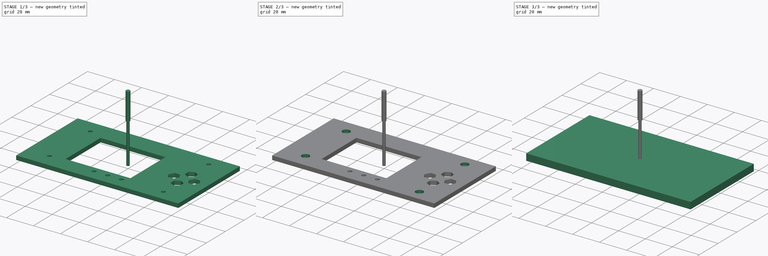
[diagram: build sequence overview — one tinted view per stage of 3, left to right]
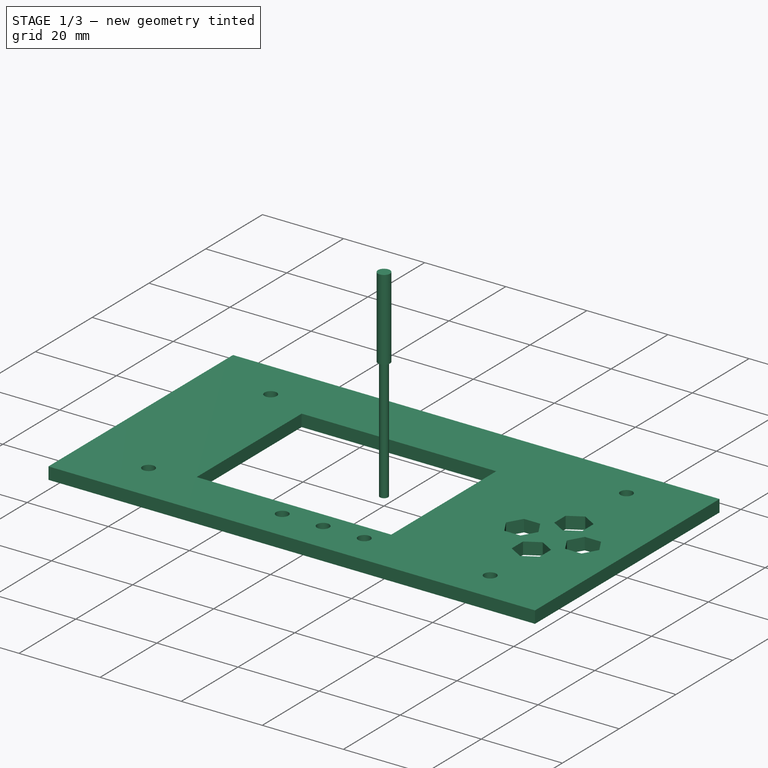
[diagram: stage 1 of 3 — iso view after this stage's code; geometry added in this stage tinted green]
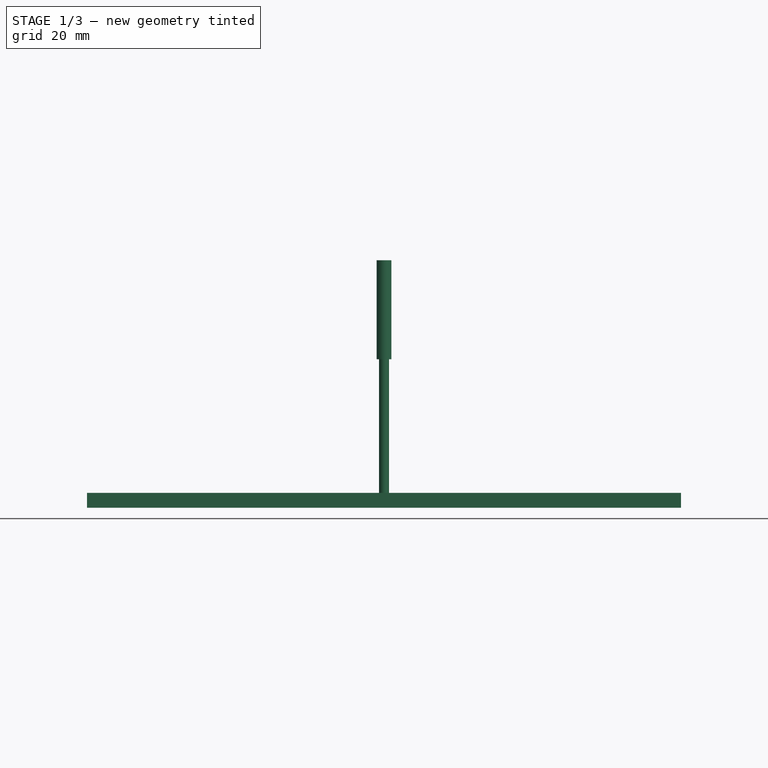
[diagram: stage 1 of 3 — front view after this stage's code; geometry added in this stage tinted green]
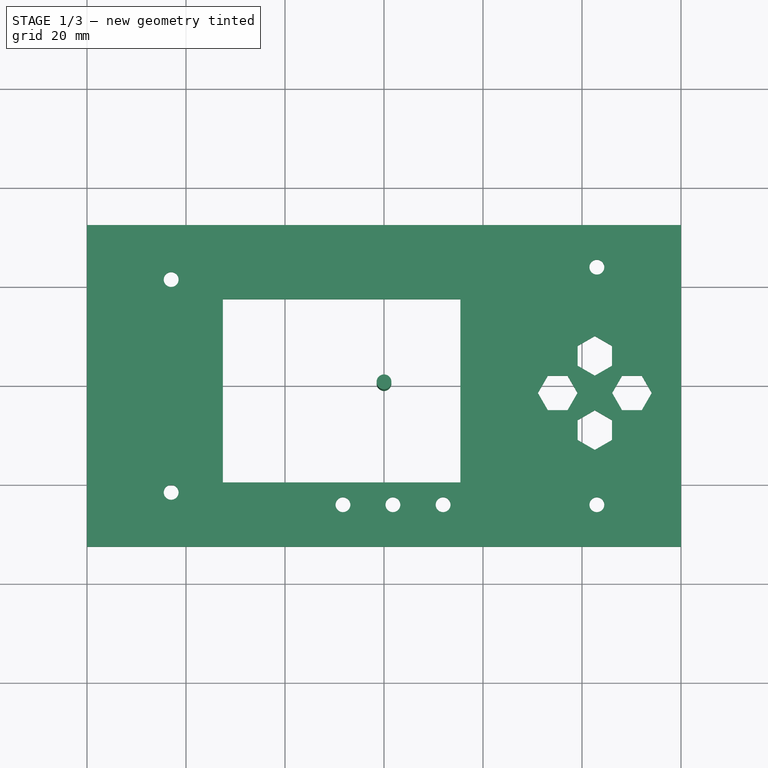
[diagram: stage 1 of 3 — top view after this stage's code; geometry added in this stage tinted green]
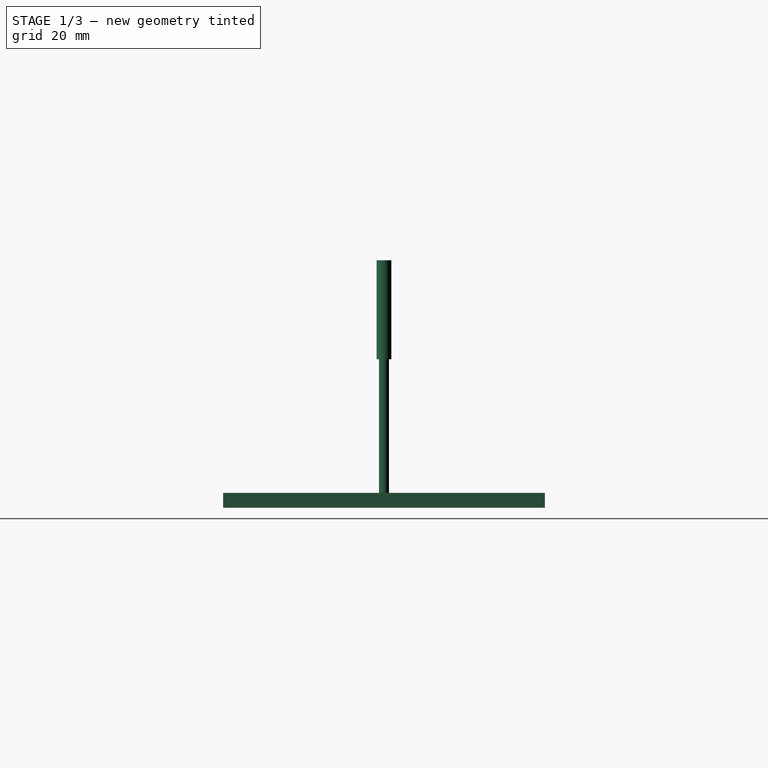
[diagram: stage 1 of 3 — right view after this stage's code; geometry added in this stage tinted green]
FCSTD DOCUMENT  (FreeCAD 0.21R33694 (Git))
Label: drilling-fc21-3
License: CreativeCommons Attribution-NonCommercial-ShareAlike
LicenseURL: http://creativecommons.org/licenses/by-nc-sa/4.0/
objects: Path::FeaturePython×4, Part::FeaturePython×3, App::DocumentObjectGroup×3, Sketcher::SketchObject×2, TechDraw::DrawViewDimension×2, PartDesign::Pad×1, TechDraw::DrawSVGTemplate×1, PartDesign::Plane×1, PartDesign::Pocket×1, PartDesign::Body×1, App::FeaturePython×1, TechDraw::DrawViewPart×1, TechDraw::DrawPage×1
note: 15 computed .brp shape members not serialized (recipe doc carries the construction recipe); baked Part::Feature solids carry a one-line shape summary decoded from their .brp

FEATURE [Sketcher::SketchObject] Sketch
  FullyConstrained = true
  MapMode = 5
  Support = -> [XY_Plane]
  sketch-geometry (50):
    g0: LineSegment StartX=-60 StartY=32.5 StartZ=0 EndX=60 EndY=32.5 EndZ=0
    g1: LineSegment StartX=60 StartY=32.5 StartZ=0 EndX=60 EndY=-32.5 EndZ=0
    g2: LineSegment StartX=60 StartY=-32.5 StartZ=0 EndX=-60 EndY=-32.5 EndZ=0
    g3: LineSegment StartX=-60 StartY=-32.5 StartZ=0 EndX=-60 EndY=32.5 EndZ=0
    g4: LineSegment StartX=-32.56 StartY=17.5 StartZ=0 EndX=15.44 EndY=17.5 EndZ=0
    g5: LineSegment StartX=15.44 StartY=17.5 StartZ=0 EndX=15.44 EndY=-19.5 EndZ=0
    g6: LineSegment StartX=15.44 StartY=-19.5 StartZ=0 EndX=-32.56 EndY=-19.5 EndZ=0
    g7: LineSegment StartX=-32.56 StartY=-19.5 StartZ=0 EndX=-32.56 EndY=17.5 EndZ=0
    g8: Circle CenterX=-8.29 CenterY=-24 CenterZ=0 NormalX=0 NormalY=0 NormalZ=1 AngleXU=0 Radius=1.5
    g9: Circle CenterX=1.8 CenterY=-24 CenterZ=0 NormalX=0 NormalY=0 NormalZ=1 AngleXU=0 Radius=1.5
    g10: Circle CenterX=11.94 CenterY=-24 CenterZ=0 NormalX=0 NormalY=0 NormalZ=1 AngleXU=0 Radius=1.5
    g11: Circle CenterX=43 CenterY=24 CenterZ=0 NormalX=0 NormalY=0 NormalZ=1 AngleXU=0 Radius=1.5
    g12: Circle CenterX=43 CenterY=-24 CenterZ=0 NormalX=0 NormalY=0 NormalZ=1 AngleXU=0 Radius=1.5
    g13: Circle CenterX=-43 CenterY=-21.5 CenterZ=0 NormalX=0 NormalY=0 NormalZ=1 AngleXU=0 Radius=1.5
    g14: LineSegment StartX=43 StartY=24 StartZ=0 EndX=43 EndY=-24 EndZ=0
    g15: LineSegment StartX=46.0541 StartY=4.08 StartZ=0 EndX=46.0541 EndY=8.08 EndZ=0
    g16: LineSegment StartX=46.0541 StartY=8.08 StartZ=0 EndX=42.59 EndY=10.08 EndZ=0
    g17: LineSegment StartX=42.59 StartY=10.08 StartZ=0 EndX=39.1259 EndY=8.08 EndZ=0
    g18: LineSegment StartX=39.1259 StartY=8.08 StartZ=0 EndX=39.1259 EndY=4.08 EndZ=0
    g19: LineSegment StartX=39.1259 StartY=4.08 StartZ=0 EndX=42.59 EndY=2.08 EndZ=0
    g20: LineSegment StartX=42.59 StartY=2.08 StartZ=0 EndX=46.0541 EndY=4.08 EndZ=0
    g21: Circle CenterX=42.59 CenterY=6.08 CenterZ=0 NormalX=0 NormalY=0 NormalZ=1 AngleXU=0 Radius=4
    g22: LineSegment StartX=52.09 StartY=2.0441 StartZ=0 EndX=48.09 EndY=2.0441 EndZ=0
    g23: LineSegment StartX=48.09 StartY=2.0441 StartZ=0 EndX=46.09 EndY=-1.42 EndZ=0
    g24: LineSegment StartX=46.09 StartY=-1.42 StartZ=0 EndX=48.09 EndY=-4.8841 EndZ=0
    g25: LineSegment StartX=48.09 StartY=-4.8841 StartZ=0 EndX=52.09 EndY=-4.8841 EndZ=0
    g26: LineSegment StartX=52.09 StartY=-4.8841 StartZ=0 EndX=54.09 EndY=-1.42 EndZ=0
    g27: LineSegment StartX=54.09 StartY=-1.42 StartZ=0 EndX=52.09 EndY=2.0441 EndZ=0
    g28: Circle CenterX=50.09 CenterY=-1.42 CenterZ=0 NormalX=0 NormalY=0 NormalZ=1 AngleXU=0 Radius=4
    g29: LineSegment StartX=37.09 StartY=2.0441 StartZ=0 EndX=33.09 EndY=2.0441 EndZ=0
    g30: LineSegment StartX=33.09 StartY=2.0441 StartZ=0 EndX=31.09 EndY=-1.42 EndZ=0
    g31: LineSegment StartX=31.09 StartY=-1.42 StartZ=0 EndX=33.09 EndY=-4.8841 EndZ=0
    g32: LineSegment StartX=33.09 StartY=-4.8841 StartZ=0 EndX=37.09 EndY=-4.8841 EndZ=0
    g33: LineSegment StartX=37.09 StartY=-4.8841 StartZ=0 EndX=39.09 EndY=-1.42 EndZ=0
    g34: LineSegment StartX=39.09 StartY=-1.42 StartZ=0 EndX=37.09 EndY=2.0441 EndZ=0
    g35: Circle CenterX=35.09 CenterY=-1.42 CenterZ=0 NormalX=0 NormalY=0 NormalZ=1 AngleXU=0 Radius=4
    g36: LineSegment StartX=39.1259 StartY=-6.92 StartZ=0 EndX=39.1259 EndY=-10.92 EndZ=0
    g37: LineSegment StartX=39.1259 StartY=-10.92 StartZ=0 EndX=42.59 EndY=-12.92 EndZ=0
    g38: LineSegment StartX=42.59 StartY=-12.92 StartZ=0 EndX=46.0541 EndY=-10.92 EndZ=0
    g39: LineSegment StartX=46.0541 StartY=-10.92 StartZ=0 EndX=46.0541 EndY=-6.92 EndZ=0
    g40: LineSegment StartX=46.0541 StartY=-6.92 StartZ=0 EndX=42.59 EndY=-4.92 EndZ=0
    g41: LineSegment StartX=42.59 StartY=-4.92 StartZ=0 EndX=39.1259 EndY=-6.92 EndZ=0
    g42: Circle CenterX=42.59 CenterY=-8.92 CenterZ=0 NormalX=0 NormalY=0 NormalZ=1 AngleXU=0 Radius=4
    g43: LineSegment StartX=35.09 StartY=-1.42 StartZ=0 EndX=42.59 EndY=-8.92 EndZ=0
    g44: LineSegment StartX=35.09 StartY=-1.42 StartZ=0 EndX=42.59 EndY=6.08 EndZ=0
    g45: LineSegment StartX=42.59 StartY=-8.92 StartZ=0 EndX=50.09 EndY=-1.42 EndZ=0
    g46: LineSegment StartX=42.59 StartY=6.08 StartZ=0 EndX=50.09 EndY=-1.42 EndZ=0
    g47: Circle CenterX=-43 CenterY=21.5 CenterZ=0 NormalX=0 NormalY=0 NormalZ=1 AngleXU=0 Radius=1.5
    g48: LineSegment StartX=43 StartY=24 StartZ=0 EndX=-43 EndY=24 EndZ=0
    g49: Circle CenterX=0 CenterY=0 CenterZ=0 NormalX=0 NormalY=0 NormalZ=1 AngleXU=0 Radius=1
  constraints (124):
    c: Coincident(g0,g1)
    c: Coincident(g1,g2)
    c: Coincident(g2,g3)
    c: Coincident(g3,g0)
    c: Horizontal(g2)
    c: Vertical(g1)
    c: Symmetric(g2,g0,g-1)
    c: Symmetric(g0,g0,g-2)
    c: Coincident(g4,g5)
    c: Coincident(g5,g6)
    c: Coincident(g6,g7)
    c: Coincident(g7,g4)
    c: Horizontal(g4)
    c: Horizontal(g6)
    c: Vertical(g5)
    c: Vertical(g7)
    c: Radius(g8) = 1.5
    c: Equal(g9,g8)
    c: Equal(g8,g10)
    c: Equal(g11,g12)
    c: Coincident(g14,g11)
    c: Coincident(g14,g12)
    c: Vertical(g14)
    c: DistanceX(g0,g0) = 120
    c: DistanceY(g1,g1) = 65
    c: DistanceX(g8,g9) = 10.09
    c: DistanceX(g9,g10) = 10.14
    c: DistanceX(g10,g12) = 31.06
    c: Horizontal(g10,g12)
    c: DistanceX(g4,g4) = 48
    c: DistanceY(g7,g7) = 37
    c: DistanceY(g10,g5) = 4.5
    c: DistanceX(g10,g5) = 3.5
    c: Horizontal(g9,g8)
    c: Horizontal(g10,g9)
    c: Coincident(g15,g16)
    c: Coincident(g16,g17)
    c: Coincident(g17,g18)
    c: Coincident(g18,g19)
    c: Coincident(g19,g20)
    c: Coincident(g20,g15)
    c: Equal(g15, g16-g20) x5
    c: PointOnObject(g15,g21)
    c: PointOnObject(g16,g21)
    c: PointOnObject(g17,g21)
    c: PointOnObject(g18,g21)
    c: PointOnObject(g19,g21)
    c: PointOnObject(g20,g21)
    c: Coincident(g22,g23)
    c: Coincident(g23,g24)
    c: Coincident(g24,g25)
    c: Coincident(g25,g26)
    c: Coincident(g26,g27)
    c: Coincident(g27,g22)
    c: Equal(g22, g23-g27) x5
    c: PointOnObject(g22,g28)
    c: PointOnObject(g23,g28)
    c: PointOnObject(g24,g28)
    c: PointOnObject(g25,g28)
    c: PointOnObject(g26,g28)
    c: PointOnObject(g27,g28)
    c: Coincident(g29,g30)
    c: Coincident(g30,g31)
    c: Coincident(g31,g32)
    c: Coincident(g32,g33)
    c: Coincident(g33,g34)
    c: Coincident(g34,g29)
    c: Equal(g29, g30-g34) x5
    c: PointOnObject(g29,g35)
    c: PointOnObject(g30,g35)
    c: PointOnObject(g31,g35)
    c: PointOnObject(g32,g35)
    c: PointOnObject(g33,g35)
    c: PointOnObject(g34,g35)
    c: Coincident(g36,g37)
    c: Coincident(g37,g38)
    c: Coincident(g38,g39)
    c: Coincident(g39,g40)
    c: Coincident(g40,g41)
    c: Coincident(g41,g36)
    c: Equal(g36, g37-g41) x5
    c: PointOnObject(g36,g42)
    c: PointOnObject(g37,g42)
    c: PointOnObject(g38,g42)
    c: PointOnObject(g39,g42)
    c: PointOnObject(g40,g42)
    c: PointOnObject(g41,g42)
    c: Equal(g21,g35)
    c: Equal(g35,g28)
    c: Equal(g28,g42)
    c: Vertical(g18)
    c: Horizontal(g29)
    c: Horizontal(g22)
    c: Vertical(g36)
    c: DistanceX(g35,g28) = 15
    c: DistanceY(g42,g21) = 15
    c: DistanceY(g19,g16) = 8
    c: Horizontal(g29,g22)
    c: Vertical(g15,g39)
    c: Coincident(g43,g35)
    c: Coincident(g43,g42)
    c: Coincident(g44,g35)
    c: Coincident(g44,g21)
    c: Coincident(g45,g42)
    c: Coincident(g45,g28)
    c: Coincident(g46,g21)
    c: Coincident(g46,g28)
    c: Equal(g43,g44)
    c: Equal(g44,g45)
    c: DistanceY(g21,g11) = 17.92
    c: DistanceX(g21,g11) = 0.41
    c: DistanceY(g12,g11) = 48
    c: DistanceX(g47,g11) = 86
    c: DistanceY(g13,g47) = 43
    c: Equal(g13,g47)
    c: Equal(g47,g11)
    c: Radius(g13) = 1.5
    c: DistanceY(g47,g11) = 2.5
    c: Symmetric(g13,g47,g-1)
    c: Coincident(g48,g11)
    c: Vertical(g48,g47)
    c: Symmetric(g48,g11,g-2)
    c: Coincident(g-1,g49)
    c: Radius(g49) = 1
FEATURE [PartDesign::Pad] Pad
  AllowMultiFace = false
  Direction = (0,0,1)
  Length = 3
  Length2 = 100
  Profile = -> Sketch
  Type = 0
FEATURE [App::DocumentObjectGroup] Model
  Group = -> [Clone]
FEATURE [Part::FeaturePython] ToolBit  label="Endmill"  # Path/CAM toolbit (typed FeaturePython)
  BitPropertyNames = Chipload | CuttingEdgeHeight | Diameter | Flutes | Length | Material | ShankDiameter | SpindleDirection
  BitShape = <path>
  Chipload = 0
  CuttingEdgeHeight = 30
  Diameter = 2
  Flutes = 0
  Length = 50
  Material = 0
  ShankDiameter = 3
  ShapeName = endmill
  SpindleDirection = 0
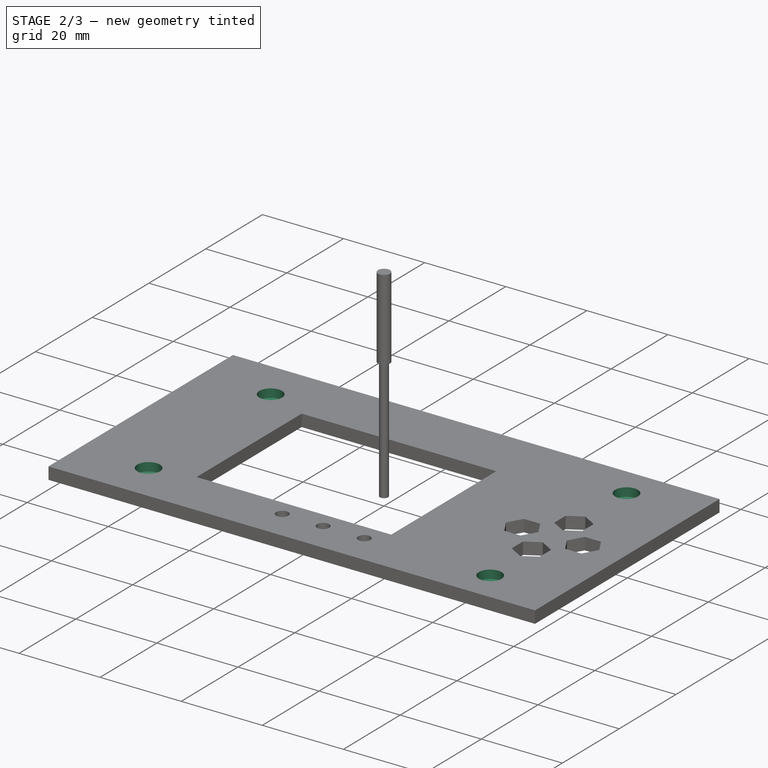
[diagram: stage 2 of 3 — iso view after this stage's code; geometry added in this stage tinted green]
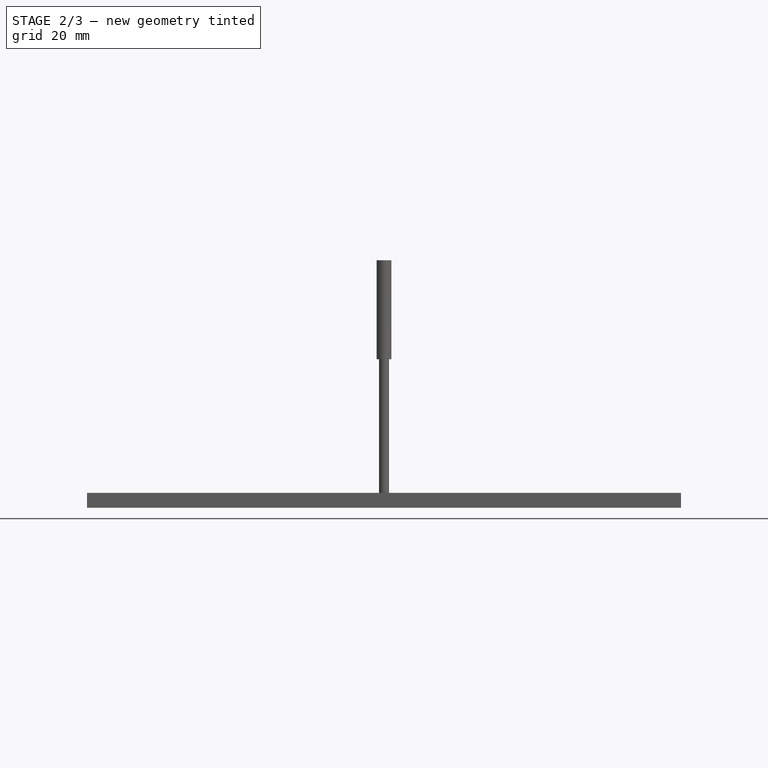
[diagram: stage 2 of 3 — front view after this stage's code; geometry added in this stage tinted green]
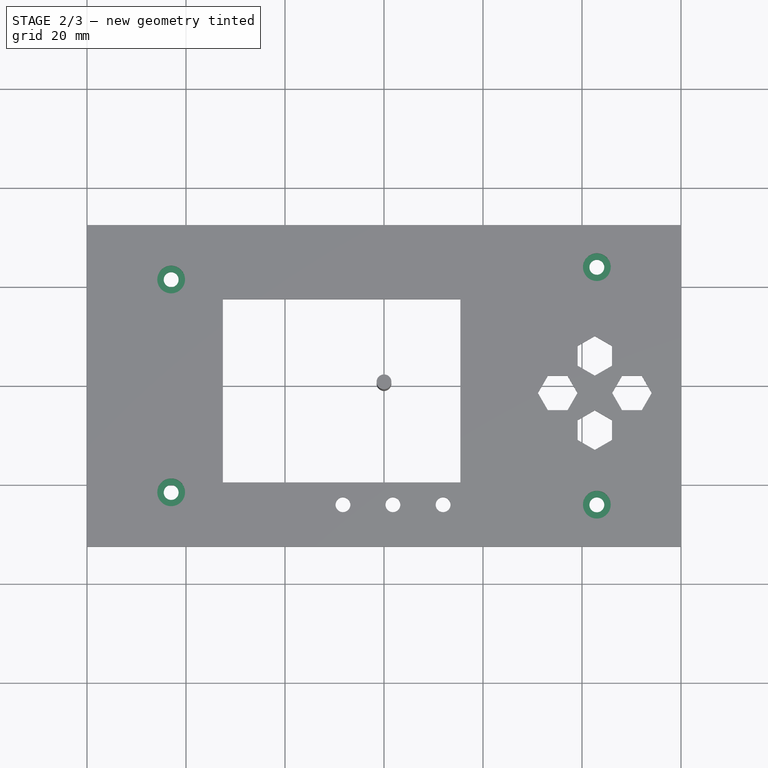
[diagram: stage 2 of 3 — top view after this stage's code; geometry added in this stage tinted green]
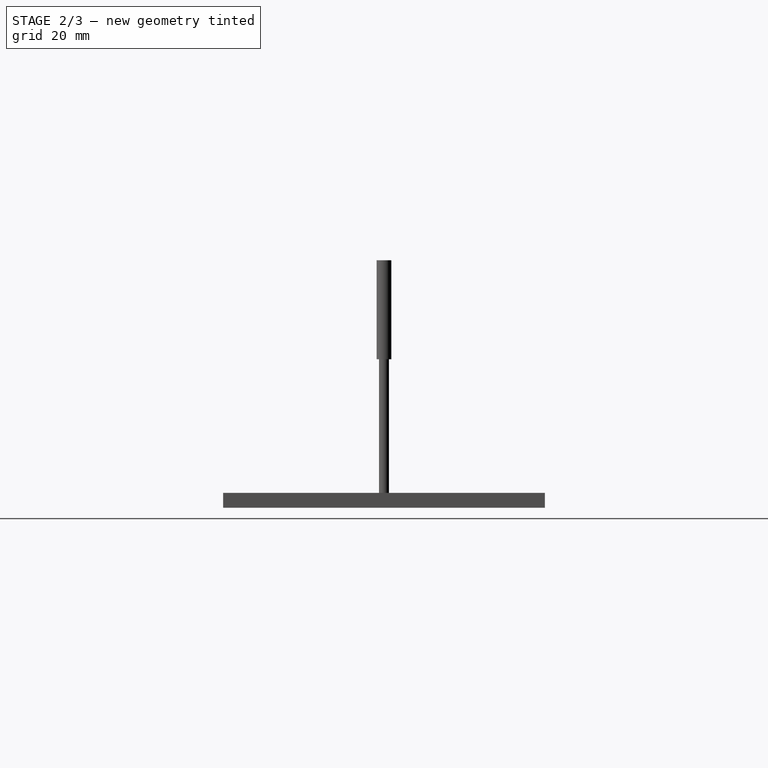
[diagram: stage 2 of 3 — right view after this stage's code; geometry added in this stage tinted green]
FEATURE [TechDraw::DrawSVGTemplate] Template
  EditableTexts = Designed_by_Name=Designed by Name; Drawing_number=Drawing number; FC-Date=Date; FC-SC=Scale; FC-SH=Sheet; FC-Title=Title; Subtitle=Subtitle; Weight=Weight
  Height = 210
  Orientation = 1
  Width = 297
FEATURE [PartDesign::Plane] DatumPlane
  Length = 137.664
  MapMode = 5
  Placement = pos=(0,0,3) rot=(0,0,1;0rad)
  ResizeMode = 0
  Support = -> [Pad]
  Width = 82.6635
FEATURE [Sketcher::SketchObject] Sketch001
  FullyConstrained = true
  MapMode = 5
  Placement = pos=(0,0,3) rot=(0,0,1;0rad)
  Support = -> [DatumPlane]
  sketch-geometry (4):
    g0: Circle CenterX=-43 CenterY=21.5 CenterZ=0 NormalX=0 NormalY=0 NormalZ=1 AngleXU=0 Radius=2.8
    g1: Circle CenterX=43 CenterY=24 CenterZ=0 NormalX=0 NormalY=0 NormalZ=1 AngleXU=0 Radius=2.8
    g2: Circle CenterX=43 CenterY=-24 CenterZ=0 NormalX=0 NormalY=0 NormalZ=1 AngleXU=0 Radius=2.8
    g3: Circle CenterX=-43 CenterY=-21.5 CenterZ=0 NormalX=0 NormalY=0 NormalZ=1 AngleXU=0 Radius=2.8
  constraints (10):
    c: Equal(g0,g3)
    c: Equal(g3,g2)
    c: Equal(g2,g1)
    c: Radius(g1) = 2.8
    c: DistanceX(g0,g1) = 86
    c: Symmetric(g3,g0,g-1)
    c: Symmetric(g1,g2,g-1)
    c: DistanceY(g3,g0) = 43
    c: DistanceY(g2,g1) = 48
    c: DistanceX(g0,g-1) = 43
FEATURE [PartDesign::Pocket] Pocket
  BaseFeature = -> Pad
  Direction = (0,0,-1)
  Length = 2.1
  Length2 = 5
  Profile = -> Sketch001
  ReferenceAxis = -> Sketch001 [N_Axis]
  Type = 0
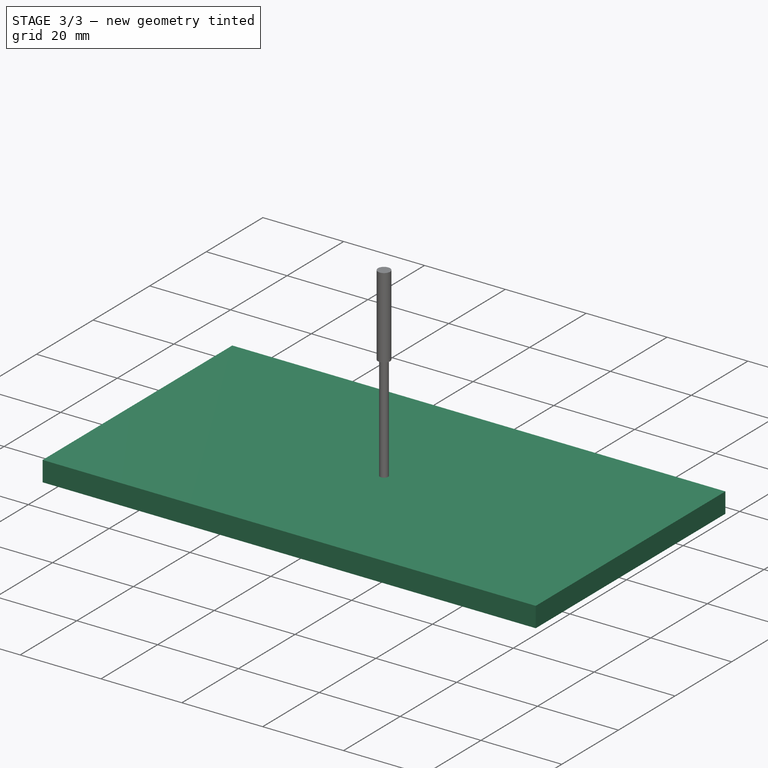
[diagram: stage 3 of 3 — iso view after this stage's code; geometry added in this stage tinted green]
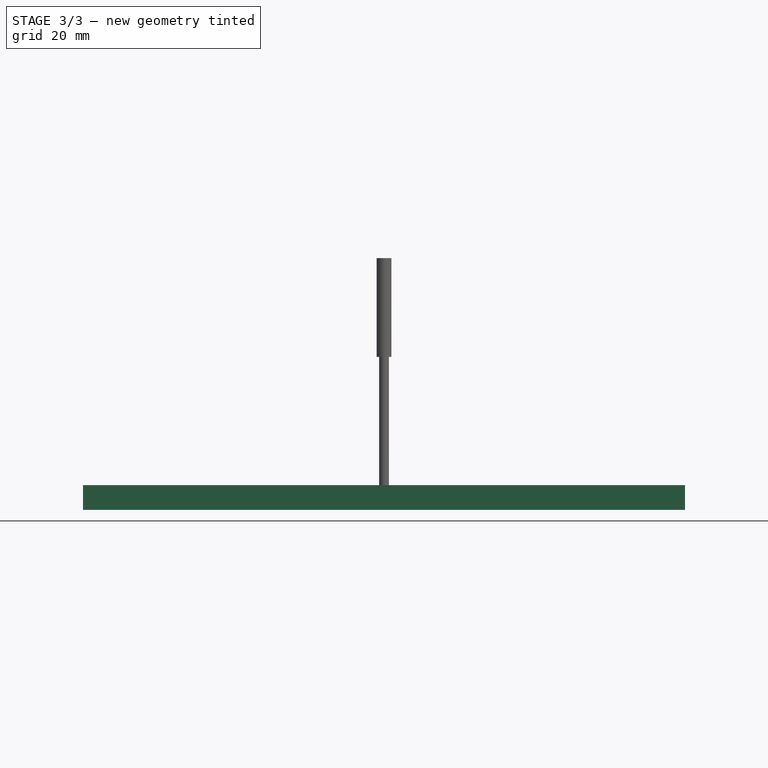
[diagram: stage 3 of 3 — front view after this stage's code; geometry added in this stage tinted green]
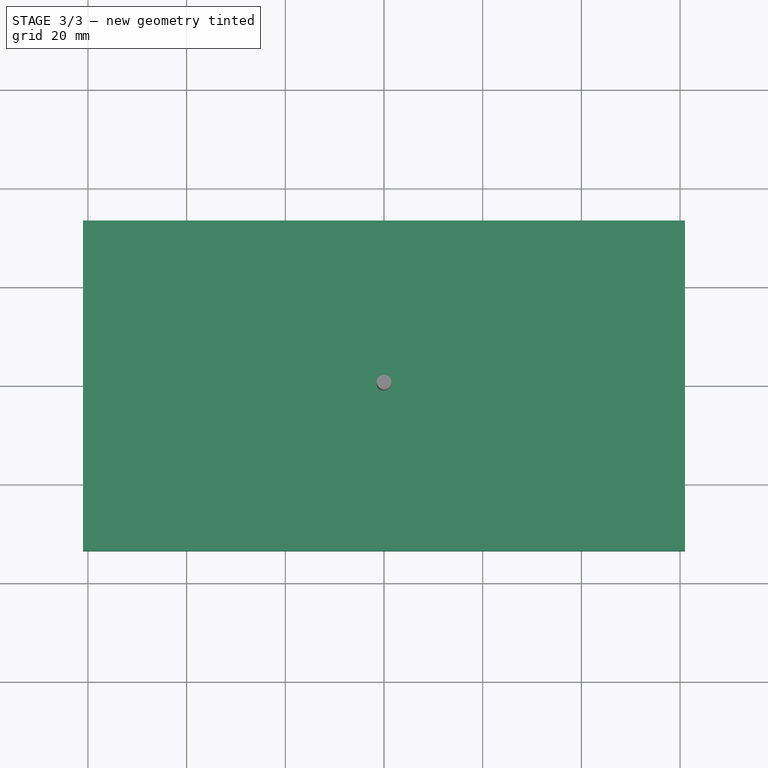
[diagram: stage 3 of 3 — top view after this stage's code; geometry added in this stage tinted green]
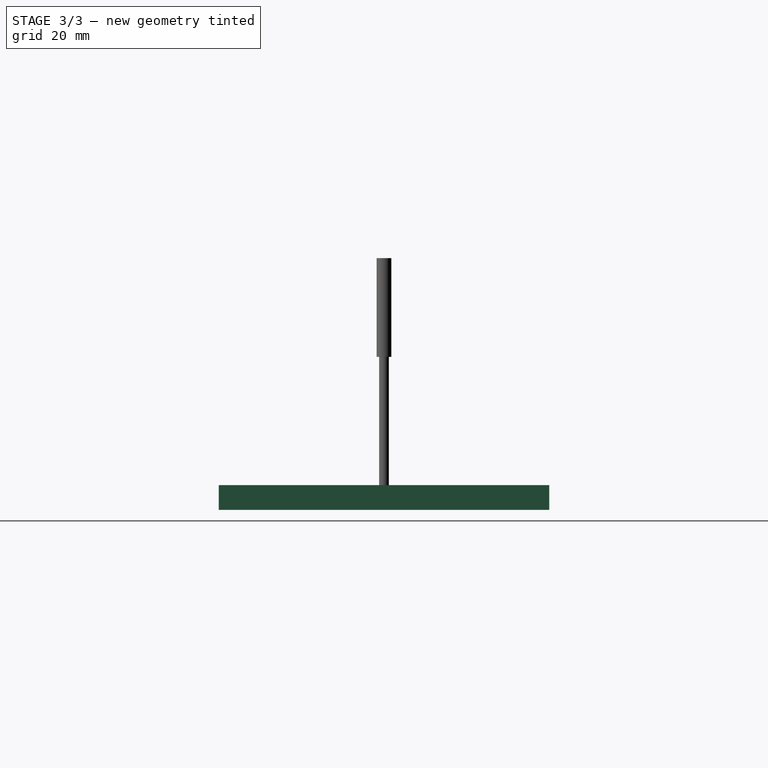
[diagram: stage 3 of 3 — right view after this stage's code; geometry added in this stage tinted green]
FEATURE [PartDesign::Body] Body
  Group = -> [Sketch,Pad,DatumPlane,Sketch001,Pocket]
  Origin = -> Origin
  Placement = pos=(0,0,-3) rot=(0,0,1;0rad)
  Tip = -> Pocket
FEATURE [App::FeaturePython] SetupSheet  # Path/CAM operation (typed FeaturePython)
  ClearanceHeightExpression = OpStockZMax+SetupSheet.ClearanceHeightOffset
  ClearanceHeightOffset = 5
  CoolantMode = 0
  CoolantModes = None | Flood | Mist
  FinalDepthExpression = OpFinalDepth
  HorizRapid = 0
  SafeHeightExpression = OpStockZMax+SetupSheet.SafeHeightOffset
  SafeHeightOffset = 3
  StartDepthExpression = OpStartDepth
  StepDownExpression = OpToolDiameter
  VertRapid = 0
FEATURE [Part::FeaturePython] Clone  label="Model-Body"  # Draft clone (typed FeaturePython)
  AttacherType = Attacher::AttachEngine3D
  Fuse = false
  Objects = -> [Body]
  PathResource = Model
  Scale = (1,1,1)
FEATURE [Path::FeaturePython] TC__Default_Tool  label="TC: Default Tool"  # Path/CAM operation (typed FeaturePython)
  HorizFeed = 1
  HorizRapid = 0
  SpindleDir = 0
  SpindleSpeed = 0
  Tool = -> ToolBit
  ToolNumber = 1
  VertFeed = 1
  VertRapid = 0
  expr: HorizRapid = SetupSheet.HorizRapid
  expr: VertRapid = SetupSheet.VertRapid
FEATURE [App::DocumentObjectGroup] Tools
  Group = -> [TC__Default_Tool]
FEATURE [Part::FeaturePython] Stock  # WARN: FeaturePython — macro-defined, semantics opaque (R4)
  Base = -> Model
  ExtXneg = 1
  ExtXpos = 1
  ExtYneg = 1
  ExtYpos = 1
  ExtZneg = 1
  ExtZpos = 1
  Placement = pos=(-60,-32.5,0) rot=(0,0,1;0rad)
  StockType = FromBase
FEATURE [Path::FeaturePython] Profile  # Path/CAM operation (typed FeaturePython)
  Active = true
  AreaParams:
    Tolerance = 1e-07
    FitArcs = True
    Simplify = False
    CleanDistance = 0.0
    Accuracy = 0.01
    Unit = 1.0
    MinArcPoints = 4
    MaxArcPoints = 100
    ClipperScale = 10000000.0
    Fill = 0
    Coplanar = 0
    Reorient = True
    Outline = False
    Explode = False
    OpenMode = 0
    Deflection = 0.01
    SubjectFill = 0
    ClipFill = 0
    Offset = -1.0
    ExtraPass = 0
    Stepover = 0.0
    LastStepover = 0.0
    JoinType = 0
    EndType = 0
    MiterLimit = 2.0
    RoundPrecision = 0.0
    PocketMode = 0
    ToolRadius = 1.0
    PocketExtraOffset = 0.0
    PocketStepover = 0.0
    PocketLastStepover = 0.0
    FromCenter = False
    Angle = 45.0
    AngleShift = 0.0
    Shift = 0.0
    Thicken = False
    SectionCount = -1
    Stepdown = 1.0
    SectionOffset = 0.0
    SectionTolerance = 1e-07
    SectionMode = 2
    Project = False
  Base = -> [Clone]
  ClearanceHeight = 9
  CoolantMode = 0
  CycleTime = 00:18:00
  Direction = 0
  FinalDepth = -4
  HandleMultipleFeatures = 0
  JoinType = 0
  MiterLimit = 0.1
  OffsetExtra = 0
  OpFinalDepth = 3
  OpStartDepth = 4
  OpStockZMax = 4
  OpStockZMin = -1
  OpToolDiameter = 2
  PathParams = {'orientation': 1, 'feedrate': 1.0, 'feedrate_v': 1.0, 'verbose': True, 'resume_height': 7.0, 'retraction': 9.0, 'return_end': True, 'preamble': False, 'start': Vector (-42.5081875566069, 21.457189013765262, 9.0)}
  SafeHeight = 7
  Side = 1
  SplitArcs = false
  StartDepth = 0
  StartPoint = (0,0,0)
  StepDown = 2
  ToolController = -> TC__Default_Tool
  UseComp = true
  UseStartPoint = false
  processCircles = false
  processHoles = false
  processPerimeter = true
  expr: ClearanceHeight = OpStockZMax + SetupSheet.ClearanceHeightOffset
  expr: FinalDepth = -4
  expr: SafeHeight = OpStockZMax + SetupSheet.SafeHeightOffset
  expr: StartDepth = 0
  expr: StepDown = OpToolDiameter
FEATURE [Path::FeaturePython] Profile001  # Path/CAM operation (typed FeaturePython)
  Active = true
  AreaParams:
    Tolerance = 1e-07
    FitArcs = True
    Simplify = False
    CleanDistance = 0.0
    Accuracy = 0.01
    Unit = 1.0
    MinArcPoints = 4
    MaxArcPoints = 100
    ClipperScale = 10000000.0
    Fill = 0
    Coplanar = 0
    Reorient = True
    Outline = False
    Explode = False
    OpenMode = 0
    Deflection = 0.01
    SubjectFill = 0
    ClipFill = 0
    Offset = -1.0
    ExtraPass = 0
    Stepover = 0.0
    LastStepover = 0.0
    JoinType = 0
    EndType = 0
    MiterLimit = 2.0
    RoundPrecision = 0.0
    PocketMode = 0
    ToolRadius = 1.0
    PocketExtraOffset = 0.0
    PocketStepover = 0.0
    PocketLastStepover = 0.0
    FromCenter = False
    Angle = 45.0
    AngleShift = 0.0
    Shift = 0.0
    Thicken = False
    SectionCount = -1
    Stepdown = 1.0
    SectionOffset = 0.0
    SectionTolerance = 1e-07
    SectionMode = 2
    Project = False
  Base = -> [Clone]
  ClearanceHeight = 9
  CoolantMode = 0
  CycleTime = 00:05:06
  Direction = 0
  FinalDepth = 2.1
  HandleMultipleFeatures = 0
  JoinType = 0
  MiterLimit = 0.1
  OffsetExtra = 0
  OpFinalDepth = 3
  OpStartDepth = 4
  OpStockZMax = 4
  OpStockZMin = -1
  OpToolDiameter = 2
  PathParams = {'orientation': 1, 'feedrate': 1.0, 'feedrate_v': 1.0, 'verbose': True, 'resume_height': 7.0, 'retraction': 9.0, 'return_end': True, 'preamble': False, 'start': Vector (41.20566773734514, 23.910317067630846, 9.0)}
  SafeHeight = 7
  Side = 1
  SplitArcs = false
  StartDepth = 0
  StartPoint = (0,0,0)
  StepDown = 2.1
  ToolController = -> TC__Default_Tool
  UseComp = true
  UseStartPoint = false
  processCircles = false
  processHoles = false
  processPerimeter = true
  expr: ClearanceHeight = OpStockZMax + SetupSheet.ClearanceHeightOffset
  expr: FinalDepth = 2.1
  expr: SafeHeight = OpStockZMax + SetupSheet.SafeHeightOffset
  expr: StartDepth = 0
  expr: StepDown = 2.1
FEATURE [App::DocumentObjectGroup] Operations
  Group = -> [Profile,Profile001]
FEATURE [Path::FeaturePython] Job  # Path/CAM operation (typed FeaturePython)
  CycleTime = 00:23:06
  Fixtures = G54
  GeometryTolerance = 0.01
  JobType = 0
  Model = -> Model
  Operations = -> Operations
  OrderOutputBy = 0
  PostProcessor = 10
  SetupSheet = -> SetupSheet
  SplitOutput = false
  Stock = -> Stock
  Tools = -> Tools
FEATURE [TechDraw::DrawViewPart] View
  CoarseView = false
  Direction = (0,0,1)
  Focus = 100
  HardHidden = false
  IsoCount = 0
  IsoHidden = false
  IsoVisible = false
  LockPosition = false
  Perspective = false
  Rotation = 0
  ScaleType = 0
  ScrubCount = 0
  SeamHidden = false
  SeamVisible = false
  SmoothHidden = false
  SmoothVisible = false
  Source = -> [Sketch]
  X = 148.5
  XDirection = (1,0,0)
  Y = 105
FEATURE [TechDraw::DrawViewDimension] Dimension
  AngleOverride = false
  Arbitrary = false
  ArbitraryTolerances = false
  EqualTolerance = false
  ExtensionAngle = 0
  FormatSpec = %.2f
  FormatSpecOverTolerance = %+.2w
  FormatSpecUnderTolerance = %+.2w
  Inverted = false
  LineAngle = 0
  LockPosition = false
  MeasureType = 1
  OverTolerance = 0
  References2D = -> [View]
  Rotation = 0
  ScaleType = 0
  TheoreticalExact = false
  Type = 1
  UnderTolerance = 0
  X = -3.66539
  Y = 44.2291
FEATURE [TechDraw::DrawViewDimension] Dimension001
  AngleOverride = false
  Arbitrary = false
  ArbitraryTolerances = false
  EqualTolerance = false
  ExtensionAngle = 0
  FormatSpec = %.2f
  FormatSpecOverTolerance = %+.2w
  FormatSpecUnderTolerance = %+.2w
  Inverted = false
  LineAngle = 0
  LockPosition = false
  MeasureType = 1
  OverTolerance = 0
  References2D = -> [View]
  Rotation = 0
  ScaleType = 0
  TheoreticalExact = false
  Type = 2
  UnderTolerance = 0
  X = 68.1763
  Y = -0.488719
FEATURE [TechDraw::DrawPage] Page
  KeepUpdated = true
  NextBalloonIndex = 1
  ProjectionType = 0
  Template = -> Template
  Views = -> [View,Dimension,Dimension001]
note: 1 file-system path scrubbed to <path> (originals preserved in the JSON sidecar)
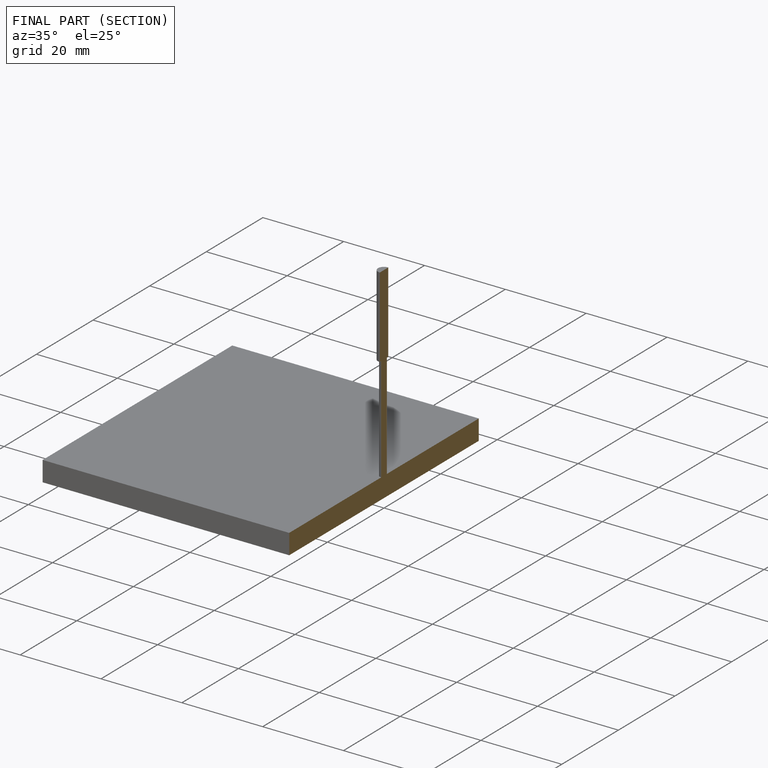
[diagram: finished part — half-section view (interior)]
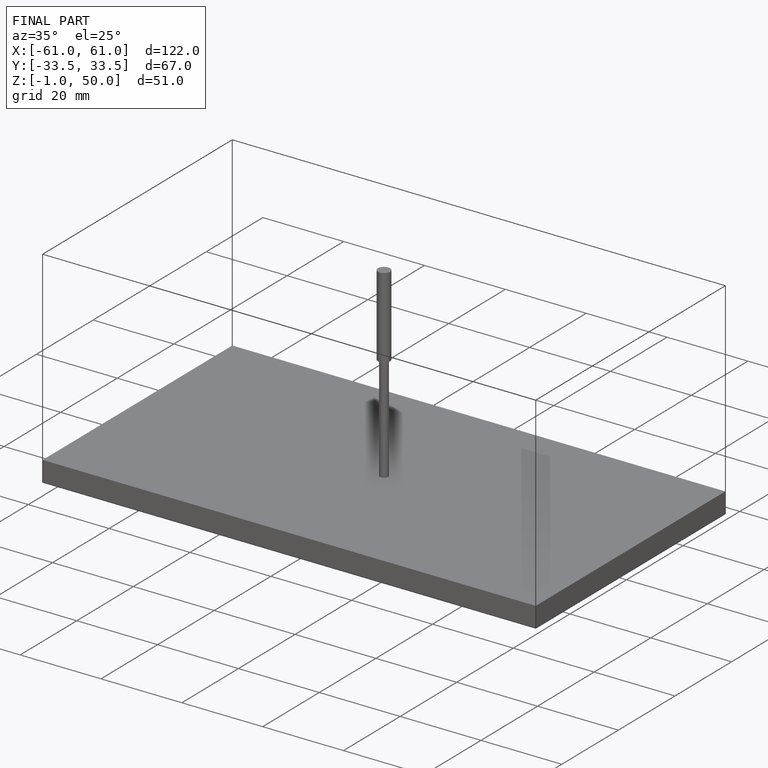
[diagram: finished part — iso view with bounding-box wireframe]
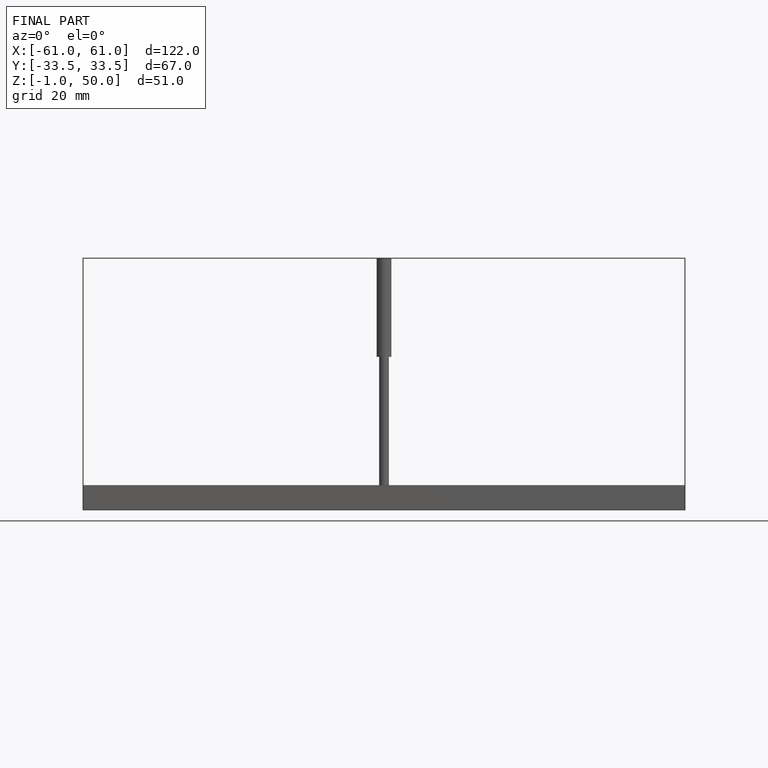
[diagram: finished part — front view with bounding-box wireframe]
